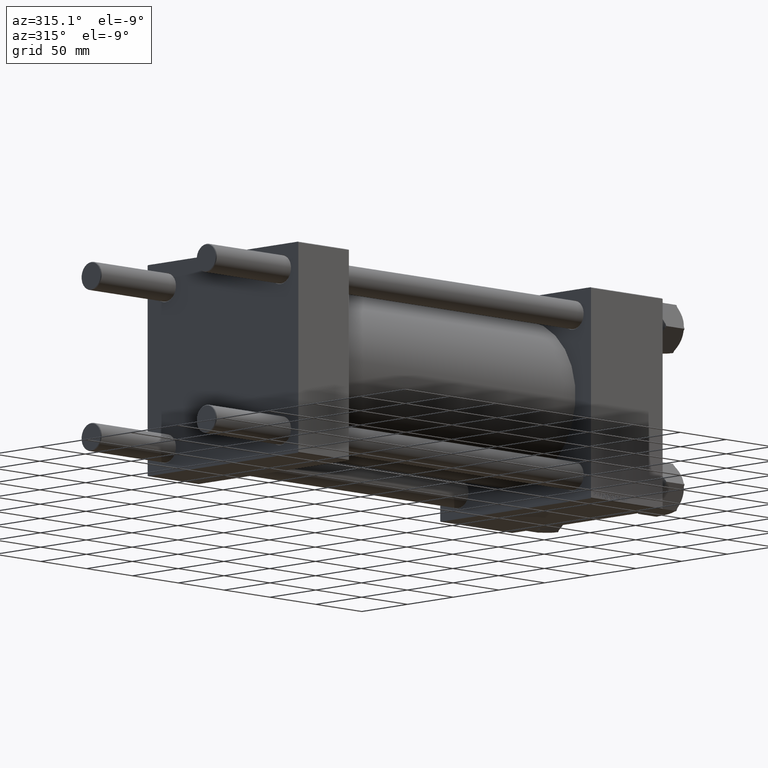
[diagram: clean part render]
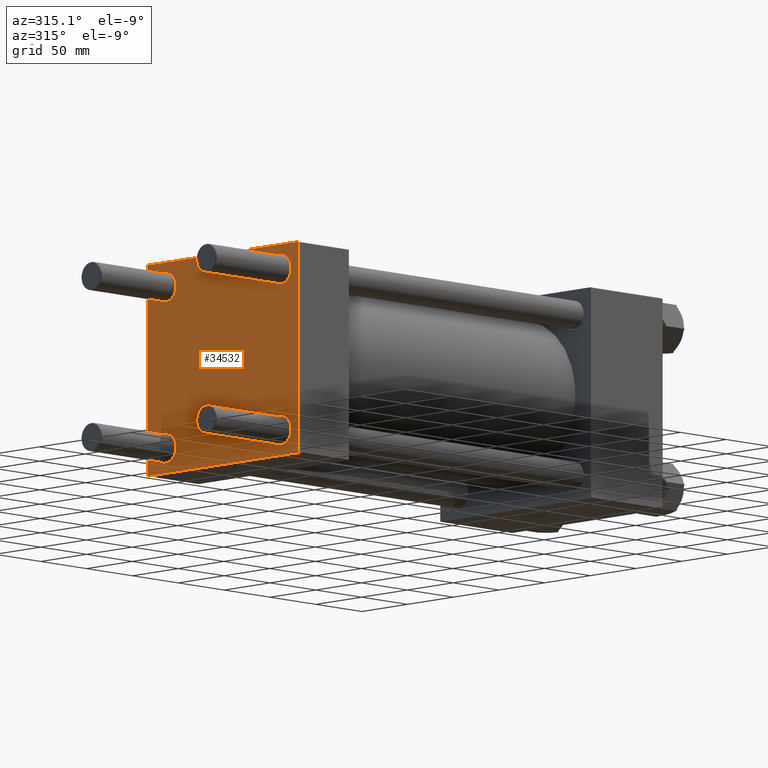
[diagram: same view with one face highlighted and labeled with its STEP entity id]
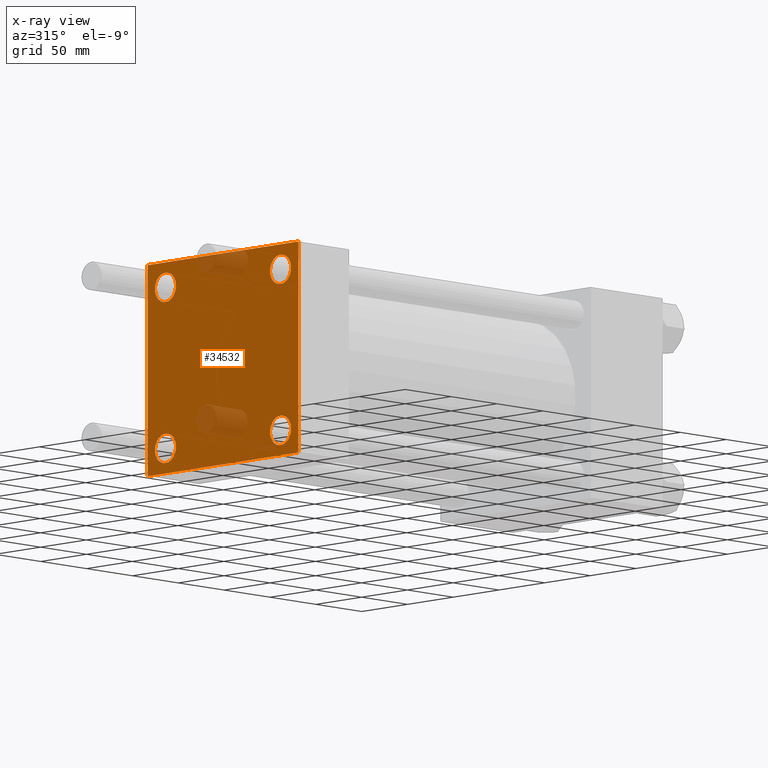
[diagram: x-ray of the same camera — body ghosted, the highlighted face saturated]
A machine part, auxiliary view. The second image highlights one B-rep face of the part: STEP entity #34532.
The next image is the same camera in x-ray: the body ghosted, the highlighted face saturated — about 8% of this face is hidden behind the body in this view.
In plain terms, the highlighted planar face has unit normal (-1, 0, 0).
Its self-contained STEP definition (entity closure, byte-faithful):
#223 = VECTOR ( 'NONE', #31567, 1000.000000000000000 ) ;
#950 = AXIS2_PLACEMENT_3D ( 'NONE', #1194, #47380, #12673 ) ;
#990 = CIRCLE ( 'NONE', #5023, 11.50000000000001066 ) ;
#1184 = DIRECTION ( 'NONE',  ( -0.000000000000000000, -0.7071067811865474617, -0.7071067811865474617 ) ) ;
#1194 = CARTESIAN_POINT ( 'NONE',  ( 0.000000000000000000, -62.94999999999998153, -62.95000000000001705 ) ) ;
#1220 = EDGE_CURVE ( 'NONE', #41439, #10284, #30784, .T. ) ;
#1912 = CARTESIAN_POINT ( 'NONE',  ( 0.000000000000000000, -82.49999999999997158, 82.00000000000001421 ) ) ;
#2557 = CARTESIAN_POINT ( 'NONE',  ( 0.000000000000000000, 82.50000000000002842, -82.00000000000000000 ) ) ;
#3565 = CARTESIAN_POINT ( 'NONE',  ( 0.000000000000000000, -82.25000000000115108, -82.24999999999886313 ) ) ;
#3805 = FACE_BOUND ( 'NONE', #41251, .T. ) ;
#4150 = ORIENTED_EDGE ( 'NONE', *, *, #48241, .T. ) ;
#4560 = FACE_BOUND ( 'NONE', #15813, .T. ) ;
#5023 = AXIS2_PLACEMENT_3D ( 'NONE', #25111, #48325, #29710 ) ;
#5035 = VERTEX_POINT ( 'NONE', #45691 ) ;
#5575 = DIRECTION ( 'NONE',  ( 0.000000000000000000, 0.000000000000000000, 1.000000000000000000 ) ) ;
#5781 = AXIS2_PLACEMENT_3D ( 'NONE', #46690, #19632, #43606 ) ;
#5788 = VERTEX_POINT ( 'NONE', #27052 ) ;
#6187 = VERTEX_POINT ( 'NONE', #44548 ) ;
#6795 = CIRCLE ( 'NONE', #19015, 11.50000000000001066 ) ;
#7022 = EDGE_CURVE ( 'NONE', #44923, #6187, #7196, .T. ) ;
#7196 = CIRCLE ( 'NONE', #13709, 11.50000000000001066 ) ;
#7745 = CIRCLE ( 'NONE', #33008, 11.50000000000001066 ) ;
#8185 = ORIENTED_EDGE ( 'NONE', *, *, #34033, .T. ) ;
#8403 = FACE_BOUND ( 'NONE', #31138, .T. ) ;
#9050 = EDGE_CURVE ( 'NONE', #39874, #5035, #24396, .T. ) ;
#10284 = VERTEX_POINT ( 'NONE', #31157 ) ;
#11005 = VECTOR ( 'NONE', #29916, 1000.000000000000114 ) ;
#11022 = ORIENTED_EDGE ( 'NONE', *, *, #34467, .T. ) ;
#11760 = ORIENTED_EDGE ( 'NONE', *, *, #42339, .F. ) ;
#12091 = ORIENTED_EDGE ( 'NONE', *, *, #1220, .T. ) ;
#12311 = EDGE_CURVE ( 'NONE', #16353, #18294, #30367, .T. ) ;
#12673 = DIRECTION ( 'NONE',  ( 0.000000000000000000, 0.000000000000000000, 1.000000000000000000 ) ) ;
#12913 = LINE ( 'NONE', #16981, #25324 ) ;
#13709 = AXIS2_PLACEMENT_3D ( 'NONE', #20604, #20088, #23929 ) ;
#13907 = DIRECTION ( 'NONE',  ( 0.000000000000000000, 0.000000000000000000, -1.000000000000000000 ) ) ;
#15558 = EDGE_CURVE ( 'NONE', #48532, #44053, #28148, .T. ) ;
#15813 = EDGE_LOOP ( 'NONE', ( #12091, #27850 ) ) ;
#16353 = VERTEX_POINT ( 'NONE', #29529 ) ;
#16974 = CARTESIAN_POINT ( 'NONE',  ( 0.000000000000000000, -62.94999999999998153, 62.95000000000001705 ) ) ;
#16981 = CARTESIAN_POINT ( 'NONE',  ( 0.000000000000000000, 82.25000000000001421, -82.25000000000001421 ) ) ;
#17310 = DIRECTION ( 'NONE',  ( 1.000000000000000000, -0.000000000000000000, -0.000000000000000000 ) ) ;
#17413 = ORIENTED_EDGE ( 'NONE', *, *, #38807, .F. ) ;
#17722 = LINE ( 'NONE', #25398, #31407 ) ;
#17976 = ORIENTED_EDGE ( 'NONE', *, *, #12311, .T. ) ;
#18294 = VERTEX_POINT ( 'NONE', #42137 ) ;
#18723 = CARTESIAN_POINT ( 'NONE',  ( 0.000000000000000000, -82.50000000000000000, -81.99999999999998579 ) ) ;
#18977 = CIRCLE ( 'NONE', #43398, 11.50000000000001066 ) ;
#19015 = AXIS2_PLACEMENT_3D ( 'NONE', #46752, #27353, #42905 ) ;
#19131 = ORIENTED_EDGE ( 'NONE', *, *, #7022, .T. ) ;
#19301 = EDGE_CURVE ( 'NONE', #21017, #5788, #6795, .T. ) ;
#19632 = DIRECTION ( 'NONE',  ( -1.000000000000000000, 0.000000000000000000, 0.000000000000000000 ) ) ;
#19718 = CARTESIAN_POINT ( 'NONE',  ( 0.000000000000000000, 82.50000000000002842, -82.49999999999997158 ) ) ;
#20088 = DIRECTION ( 'NONE',  ( 1.000000000000000000, -0.000000000000000000, -0.000000000000000000 ) ) ;
#20231 = ORIENTED_EDGE ( 'NONE', *, *, #48169, .T. ) ;
#20308 = DIRECTION ( 'NONE',  ( 0.000000000000000000, 0.000000000000000000, 1.000000000000000000 ) ) ;
#20604 = CARTESIAN_POINT ( 'NONE',  ( 0.000000000000000000, -62.94999999999998153, -62.95000000000001705 ) ) ;
#20626 = EDGE_CURVE ( 'NONE', #10284, #41439, #18977, .T. ) ;
#21009 = ORIENTED_EDGE ( 'NONE', *, *, #9050, .T. ) ;
#21017 = VERTEX_POINT ( 'NONE', #23238 ) ;
#22006 = CARTESIAN_POINT ( 'NONE',  ( 0.000000000000000000, -82.25000000000000000, 82.25000000000000000 ) ) ;
#22693 = DIRECTION ( 'NONE',  ( 1.000000000000000000, -0.000000000000000000, -0.000000000000000000 ) ) ;
#22695 = ORIENTED_EDGE ( 'NONE', *, *, #47820, .T. ) ;
#22949 = CARTESIAN_POINT ( 'NONE',  ( 0.000000000000000000, 82.25000000000002842, 82.25000000000002842 ) ) ;
#23163 = ORIENTED_EDGE ( 'NONE', *, *, #40088, .T. ) ;
#23238 = CARTESIAN_POINT ( 'NONE',  ( 0.000000000000000000, 62.95000000000000284, -51.44999999999999574 ) ) ;
#23659 = CARTESIAN_POINT ( 'NONE',  ( 0.000000000000000000, 82.50000000000002842, 82.50000000000002842 ) ) ;
#23760 = VERTEX_POINT ( 'NONE', #1912 ) ;
#23929 = DIRECTION ( 'NONE',  ( 0.000000000000000000, 0.000000000000000000, 1.000000000000000000 ) ) ;
#24160 = LINE ( 'NONE', #23659, #223 ) ;
#24396 = CIRCLE ( 'NONE', #40663, 11.50000000000001066 ) ;
#24847 = CARTESIAN_POINT ( 'NONE',  ( 0.000000000000000000, 82.00000000000005684, -82.49999999999997158 ) ) ;
#24981 = CARTESIAN_POINT ( 'NONE',  ( 0.000000000000000000, 62.95000000000000284, 62.95000000000000284 ) ) ;
#25111 = CARTESIAN_POINT ( 'NONE',  ( 0.000000000000000000, 62.95000000000000284, -62.95000000000000284 ) ) ;
#25324 = VECTOR ( 'NONE', #1184, 1000.000000000000114 ) ;
#25398 = CARTESIAN_POINT ( 'NONE',  ( 0.000000000000000000, 82.50000000000002842, 82.50000000000002842 ) ) ;
#25740 = EDGE_LOOP ( 'NONE', ( #4150, #8185, #33504, #11022, #11760, #22695, #17413, #17976 ) ) ;
#26879 = VERTEX_POINT ( 'NONE', #18723 ) ;
#27052 = CARTESIAN_POINT ( 'NONE',  ( 0.000000000000000000, 62.95000000000000284, -74.45000000000001705 ) ) ;
#27353 = DIRECTION ( 'NONE',  ( 1.000000000000000000, -0.000000000000000000, -0.000000000000000000 ) ) ;
#27850 = ORIENTED_EDGE ( 'NONE', *, *, #20626, .T. ) ;
#28061 = PLANE ( 'NONE',  #5781 ) ;
#28148 = LINE ( 'NONE', #19718, #44966 ) ;
#29529 = CARTESIAN_POINT ( 'NONE',  ( 0.000000000000000000, 82.00000000000005684, 82.50000000000002842 ) ) ;
#29710 = DIRECTION ( 'NONE',  ( 0.000000000000000000, 0.000000000000000000, 1.000000000000000000 ) ) ;
#29916 = DIRECTION ( 'NONE',  ( -0.000000000000000000, 0.7071067811865474617, 0.7071067811865474617 ) ) ;
#30367 = LINE ( 'NONE', #22949, #47310 ) ;
#30784 = CIRCLE ( 'NONE', #37285, 11.50000000000001066 ) ;
#31085 = CIRCLE ( 'NONE', #950, 11.50000000000001066 ) ;
#31138 = EDGE_LOOP ( 'NONE', ( #31185, #23163 ) ) ;
#31157 = CARTESIAN_POINT ( 'NONE',  ( 0.000000000000000000, 62.95000000000000284, 51.44999999999999574 ) ) ;
#31185 = ORIENTED_EDGE ( 'NONE', *, *, #19301, .T. ) ;
#31382 = FACE_OUTER_BOUND ( 'NONE', #25740, .T. ) ;
#31407 = VECTOR ( 'NONE', #13907, 1000.000000000000000 ) ;
#31567 = DIRECTION ( 'NONE',  ( 0.000000000000000000, -1.000000000000000000, -8.410780489584519171E-17 ) ) ;
#32028 = LINE ( 'NONE', #43231, #40961 ) ;
#32466 = VERTEX_POINT ( 'NONE', #35443 ) ;
#32565 = DIRECTION ( 'NONE',  ( 1.000000000000000000, -0.000000000000000000, -0.000000000000000000 ) ) ;
#33008 = AXIS2_PLACEMENT_3D ( 'NONE', #16974, #32565, #20308 ) ;
#33504 = ORIENTED_EDGE ( 'NONE', *, *, #15558, .T. ) ;
#33993 = LINE ( 'NONE', #22006, #11005 ) ;
#34033 = EDGE_CURVE ( 'NONE', #43680, #48532, #12913, .T. ) ;
#34467 = EDGE_CURVE ( 'NONE', #44053, #26879, #42344, .T. ) ;
#34532 = ADVANCED_FACE ( 'NONE', ( #43349, #3805, #8403, #4560, #31382 ), #28061, .T. ) ;
#35443 = CARTESIAN_POINT ( 'NONE',  ( 0.000000000000000000, -81.99999999999997158, 82.50000000000001421 ) ) ;
#35804 = DIRECTION ( 'NONE',  ( 0.000000000000000000, -1.000000000000000000, -1.682156097916903588E-16 ) ) ;
#36106 = DIRECTION ( 'NONE',  ( 0.000000000000000000, -1.682156097916903588E-16, -1.000000000000000000 ) ) ;
#36772 = CARTESIAN_POINT ( 'NONE',  ( 0.000000000000000000, 62.95000000000000284, 74.45000000000001705 ) ) ;
#37242 = ORIENTED_EDGE ( 'NONE', *, *, #38806, .T. ) ;
#37285 = AXIS2_PLACEMENT_3D ( 'NONE', #42825, #22693, #39246 ) ;
#37525 = VECTOR ( 'NONE', #39520, 999.9999999999998863 ) ;
#38806 = EDGE_CURVE ( 'NONE', #6187, #44923, #31085, .T. ) ;
#38807 = EDGE_CURVE ( 'NONE', #16353, #32466, #24160, .T. ) ;
#39006 = DIRECTION ( 'NONE',  ( 1.000000000000000000, -0.000000000000000000, -0.000000000000000000 ) ) ;
#39246 = DIRECTION ( 'NONE',  ( 0.000000000000000000, 0.000000000000000000, 1.000000000000000000 ) ) ;
#39520 = DIRECTION ( 'NONE',  ( 0.000000000000000000, -0.7071067811865376918, 0.7071067811865574537 ) ) ;
#39874 = VERTEX_POINT ( 'NONE', #45378 ) ;
#40088 = EDGE_CURVE ( 'NONE', #5788, #21017, #990, .T. ) ;
#40136 = CARTESIAN_POINT ( 'NONE',  ( 0.000000000000000000, -82.00000000000000000, -82.50000000000000000 ) ) ;
#40663 = AXIS2_PLACEMENT_3D ( 'NONE', #42843, #39006, #50001 ) ;
#40961 = VECTOR ( 'NONE', #36106, 1000.000000000000000 ) ;
#41251 = EDGE_LOOP ( 'NONE', ( #37242, #19131 ) ) ;
#41439 = VERTEX_POINT ( 'NONE', #36772 ) ;
#42137 = CARTESIAN_POINT ( 'NONE',  ( 0.000000000000000000, 82.50000000000002842, 82.00000000000005684 ) ) ;
#42339 = EDGE_CURVE ( 'NONE', #23760, #26879, #32028, .T. ) ;
#42344 = LINE ( 'NONE', #3565, #37525 ) ;
#42825 = CARTESIAN_POINT ( 'NONE',  ( 0.000000000000000000, 62.95000000000000284, 62.95000000000000284 ) ) ;
#42834 = DIRECTION ( 'NONE',  ( 0.000000000000000000, 0.7071067811865474617, -0.7071067811865474617 ) ) ;
#42843 = CARTESIAN_POINT ( 'NONE',  ( 0.000000000000000000, -62.94999999999998153, 62.95000000000001705 ) ) ;
#42905 = DIRECTION ( 'NONE',  ( 0.000000000000000000, 0.000000000000000000, 1.000000000000000000 ) ) ;
#43231 = CARTESIAN_POINT ( 'NONE',  ( 0.000000000000000000, -82.49999999999997158, 82.50000000000001421 ) ) ;
#43349 = FACE_BOUND ( 'NONE', #46581, .T. ) ;
#43398 = AXIS2_PLACEMENT_3D ( 'NONE', #24981, #17310, #5575 ) ;
#43606 = DIRECTION ( 'NONE',  ( 0.000000000000000000, 0.000000000000000000, 1.000000000000000000 ) ) ;
#43680 = VERTEX_POINT ( 'NONE', #2557 ) ;
#44053 = VERTEX_POINT ( 'NONE', #40136 ) ;
#44548 = CARTESIAN_POINT ( 'NONE',  ( 0.000000000000000000, -62.94999999999998153, -51.45000000000000995 ) ) ;
#44923 = VERTEX_POINT ( 'NONE', #46001 ) ;
#44966 = VECTOR ( 'NONE', #35804, 1000.000000000000000 ) ;
#45378 = CARTESIAN_POINT ( 'NONE',  ( 0.000000000000000000, -62.94999999999998153, 51.45000000000000995 ) ) ;
#45691 = CARTESIAN_POINT ( 'NONE',  ( 0.000000000000000000, -62.94999999999998153, 74.45000000000003126 ) ) ;
#46001 = CARTESIAN_POINT ( 'NONE',  ( 0.000000000000000000, -62.94999999999998153, -74.45000000000003126 ) ) ;
#46581 = EDGE_LOOP ( 'NONE', ( #20231, #21009 ) ) ;
#46690 = CARTESIAN_POINT ( 'NONE',  ( 0.000000000000000000, 0.000000000000000000, 0.000000000000000000 ) ) ;
#46752 = CARTESIAN_POINT ( 'NONE',  ( 0.000000000000000000, 62.95000000000000284, -62.95000000000000284 ) ) ;
#47310 = VECTOR ( 'NONE', #42834, 1000.000000000000114 ) ;
#47380 = DIRECTION ( 'NONE',  ( 1.000000000000000000, -0.000000000000000000, -0.000000000000000000 ) ) ;
#47820 = EDGE_CURVE ( 'NONE', #23760, #32466, #33993, .T. ) ;
#48169 = EDGE_CURVE ( 'NONE', #5035, #39874, #7745, .T. ) ;
#48241 = EDGE_CURVE ( 'NONE', #18294, #43680, #17722, .T. ) ;
#48325 = DIRECTION ( 'NONE',  ( 1.000000000000000000, -0.000000000000000000, -0.000000000000000000 ) ) ;
#48532 = VERTEX_POINT ( 'NONE', #24847 ) ;
#50001 = DIRECTION ( 'NONE',  ( 0.000000000000000000, 0.000000000000000000, 1.000000000000000000 ) ) ;